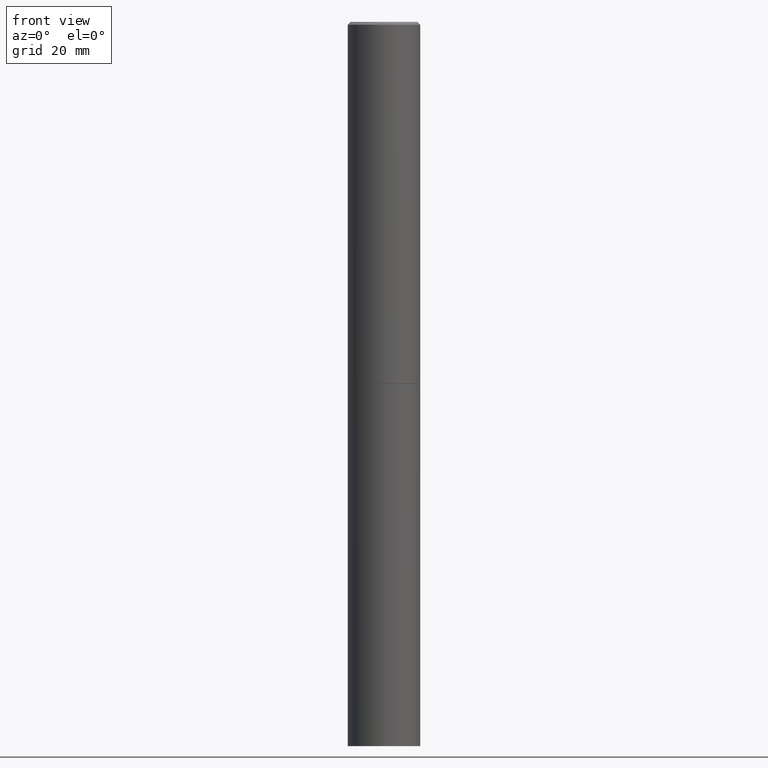
[diagram: clean part render]
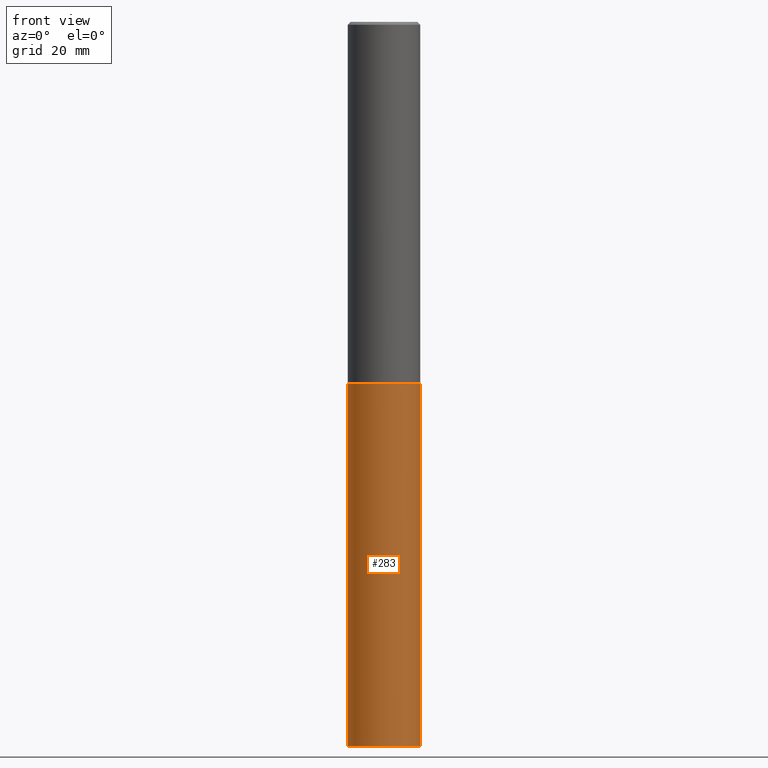
[diagram: same view with one face highlighted and labeled with its STEP entity id]
A machine part, front view. The second image highlights one B-rep face of the part: STEP entity #283.
In plain terms, the highlighted cylindrical surface (edge-blend (fillet) strip) has radius 6.35 mm, axis along (-0, 0, 1).
Its self-contained STEP definition (entity closure, byte-faithful):
#10 = ORIENTED_EDGE ( 'NONE', *, *, #129, .F. ) ;
#14 = CARTESIAN_POINT ( 'NONE',  ( 0.2500000000000000000, -1.745740669421566678E-15, 1.219044193948983948E-29 ) ) ;
#16 = LINE ( 'NONE', #301, #231 ) ;
#19 = DIRECTION ( 'NONE',  ( -2.445468806185136597E-29, 3.491481338843145583E-15, 1.000000000000000000 ) ) ;
#28 = CYLINDRICAL_SURFACE ( 'NONE', #303, 0.2500000000000000000 ) ;
#31 = VECTOR ( 'NONE', #299, 39.37007874015748143 ) ;
#33 = ORIENTED_EDGE ( 'NONE', *, *, #62, .F. ) ;
#38 = VERTEX_POINT ( 'NONE', #54 ) ;
#46 = EDGE_CURVE ( 'NONE', #293, #181, #170, .T. ) ;
#49 = CARTESIAN_POINT ( 'NONE',  ( 0.2500000000000000000, -1.920314736363729656E-14, -5.000000000000000000 ) ) ;
#54 = CARTESIAN_POINT ( 'NONE',  ( -0.2500000000000000000, -1.131669818126154695E-14, -2.500000000000000000 ) ) ;
#56 = EDGE_CURVE ( 'NONE', #241, #293, #308, .T. ) ;
#62 = EDGE_CURVE ( 'NONE', #38, #181, #294, .T. ) ;
#103 = CARTESIAN_POINT ( 'NONE',  ( 0.2500000000000000000, -1.047444401652943162E-14, -2.500000000000000000 ) ) ;
#105 = DIRECTION ( 'NONE',  ( 1.000000000000000000, -6.982962677686270655E-15, 0.000000000000000000 ) ) ;
#109 = DIRECTION ( 'NONE',  ( 1.000000000000000000, -6.982962677686266711E-15, 4.876176775795935793E-29 ) ) ;
#110 = FACE_OUTER_BOUND ( 'NONE', #348, .T. ) ;
#124 = AXIS2_PLACEMENT_3D ( 'NONE', #355, #19, #351 ) ;
#129 = EDGE_CURVE ( 'NONE', #241, #38, #16, .T. ) ;
#132 = DIRECTION ( 'NONE',  ( -2.445468806185136877E-29, 3.491481338843145188E-15, 1.000000000000000000 ) ) ;
#170 = LINE ( 'NONE', #14, #31 ) ;
#181 = VERTEX_POINT ( 'NONE', #103 ) ;
#200 = AXIS2_PLACEMENT_3D ( 'NONE', #215, #333, #105 ) ;
#215 = CARTESIAN_POINT ( 'NONE',  ( 1.222734403092568523E-28, -1.745740669421572989E-14, -5.000000000000000000 ) ) ;
#224 = CARTESIAN_POINT ( 'NONE',  ( 0.000000000000000000, 0.000000000000000000, 0.000000000000000000 ) ) ;
#228 = CARTESIAN_POINT ( 'NONE',  ( -0.2500000000000000000, -1.131669818126154695E-14, -5.000000000000000000 ) ) ;
#231 = VECTOR ( 'NONE', #132, 39.37007874015748143 ) ;
#241 = VERTEX_POINT ( 'NONE', #228 ) ;
#265 = ORIENTED_EDGE ( 'NONE', *, *, #56, .T. ) ;
#283 = ADVANCED_FACE ( 'NONE', ( #110 ), #28, .T. ) ;
#293 = VERTEX_POINT ( 'NONE', #49 ) ;
#294 = CIRCLE ( 'NONE', #124, 0.2500000000000000000 ) ;
#299 = DIRECTION ( 'NONE',  ( -2.445468806185136877E-29, 3.491481338843145188E-15, 1.000000000000000000 ) ) ;
#301 = CARTESIAN_POINT ( 'NONE',  ( -0.2500000000000000000, 1.776356839400250465E-15, -1.229733772563726445E-29 ) ) ;
#303 = AXIS2_PLACEMENT_3D ( 'NONE', #224, #365, #109 ) ;
#308 = CIRCLE ( 'NONE', #200, 0.2500000000000000000 ) ;
#325 = ORIENTED_EDGE ( 'NONE', *, *, #46, .T. ) ;
#333 = DIRECTION ( 'NONE',  ( -2.445468806185136597E-29, 3.491481338843145583E-15, 1.000000000000000000 ) ) ;
#348 = EDGE_LOOP ( 'NONE', ( #10, #265, #325, #33 ) ) ;
#351 = DIRECTION ( 'NONE',  ( 1.000000000000000000, -6.982962677686266711E-15, 0.000000000000000000 ) ) ;
#355 = CARTESIAN_POINT ( 'NONE',  ( 6.113672015462842613E-29, -8.728703347107864943E-15, -2.500000000000000000 ) ) ;
#365 = DIRECTION ( 'NONE',  ( -2.445468806185136597E-29, 3.491481338843145583E-15, 1.000000000000000000 ) ) ;